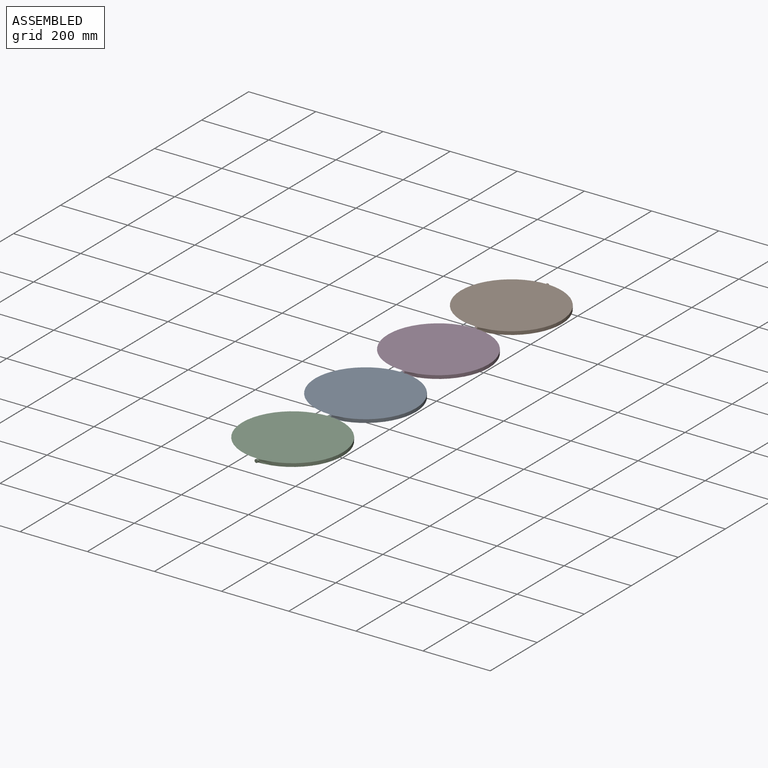
[diagram: assembled view]
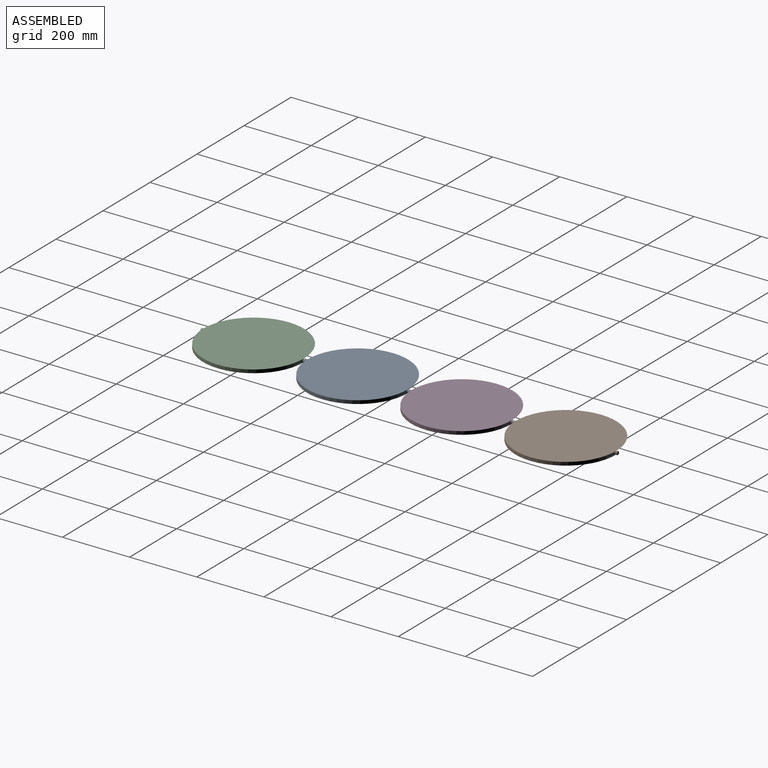
[diagram: assembled view, second angle]
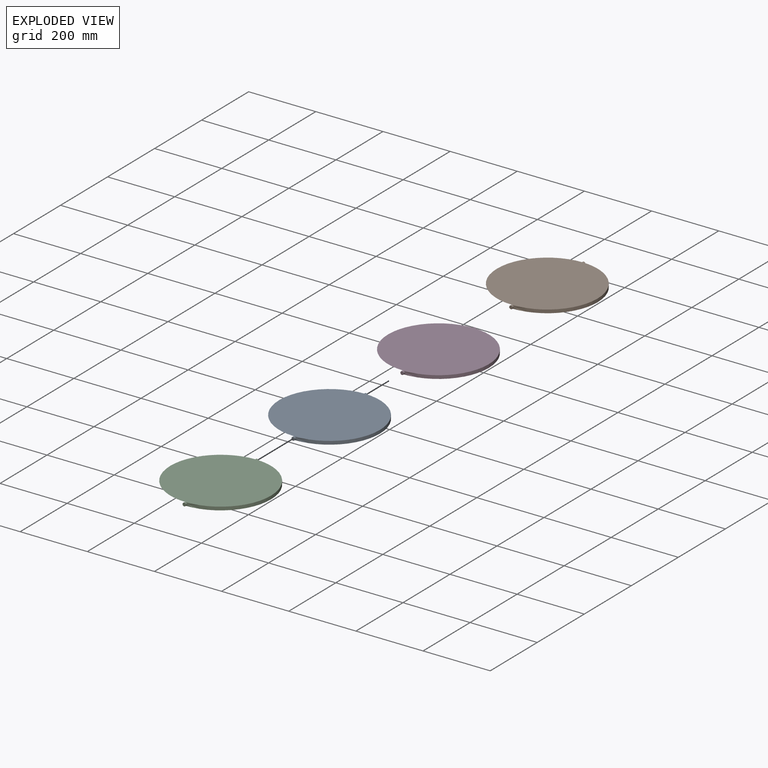
[diagram: exploded view]
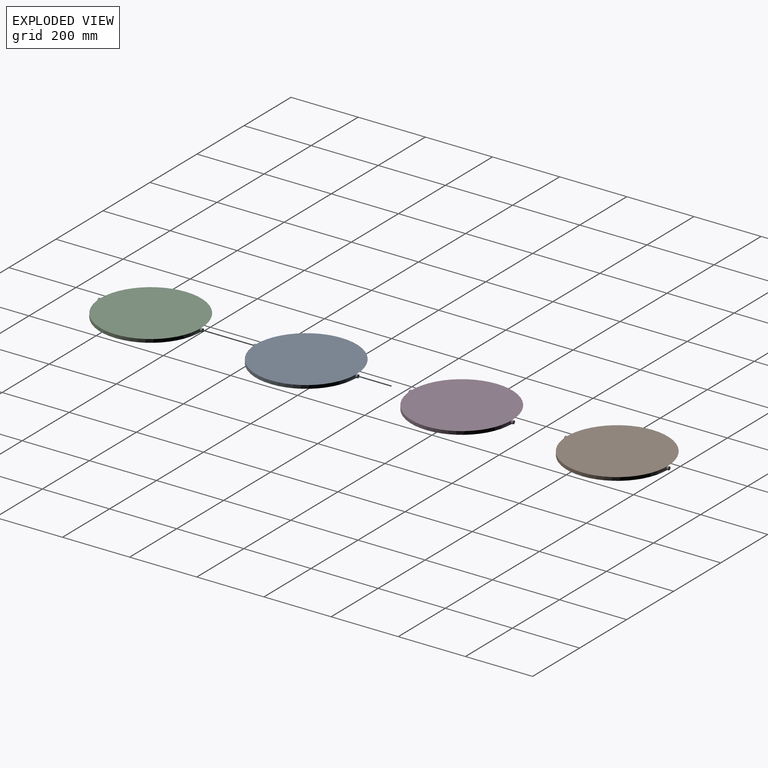
[diagram: exploded view, second angle]
ASSEMBLY  parts=4 mates=3
PART A: 9 faces, bbox 300x310x10 mm
  f0: cylinder r=150mm len=300mm, axis (0,0,-1), area 4633.8mm2, adj f3,f4,f6,f7
  f1: cylinder r=150mm len=10.01mm, axis (0,0,-1), area 78.5mm2, adj f7
  f2: cylinder r=150mm len=300mm, axis (0,0,-1), area -4711.3mm2, adj f3,f4,f6,f7
  f3: plane 300x300mm, normal (0,0,1), area 70685.8mm2, adj f0,f2
  f4: plane 300x300mm, normal (0,0,-1), area 70685.8mm2, adj f0,f2
  f5: plane 10x10mm, normal (0,1,0), area 78.5mm2, adj f6
  f6: cylinder r=5mm len=10mm, axis (0,-1,0), area 316.8mm2, adj f0,f2,f5
  f7: cylinder r=5mm len=10mm, axis (0,-1,0), area 316.8mm2, adj f0,f1,f2,f8
  f8: plane 10x10mm, normal (0,-1,0), area 78.5mm2, adj f7
PART B: same geometry as A
PART C: same geometry as A
PART D: same geometry as A
PLACE A t=(-531.99,486.52,0)mm
PLACE B t=(-531.99,1106.52,0)mm
PLACE C t=(-531.99,176.52,0)mm
PLACE D t=(-531.99,796.52,0)mm
MATE fastened B.f6 <-> D.f6  axis (0,-1,0) through (-531.99,951.52,0)mm
MATE fastened A.f6 <-> C.f6  axis (0,-1,0) through (-531.99,331.52,0)mm
MATE fastened A.f6 <-> D.f6  axis (0,1,0) through (-531.99,641.52,0)mm
